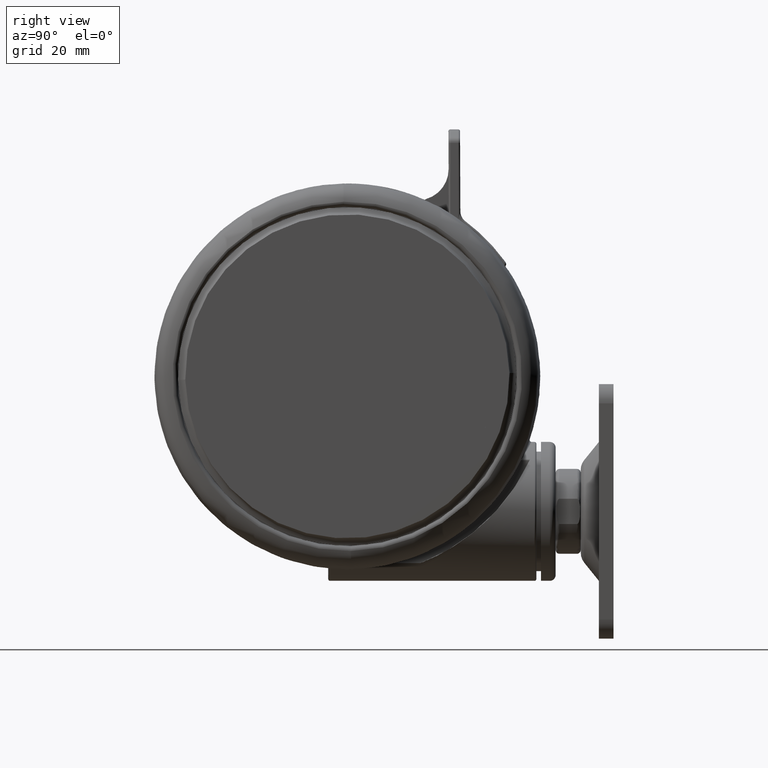
[diagram: clean part render]
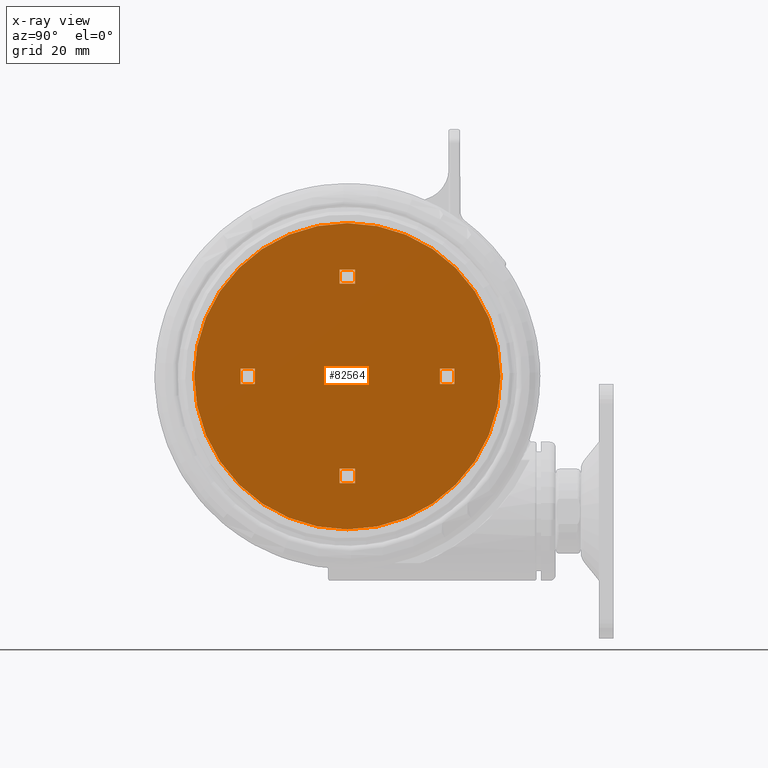
[diagram: x-ray — body ghosted, one internal face saturated and labeled with its STEP entity id]
A machine part, right view, then the same camera in x-ray: the body is ghosted and one INTERNAL B-rep face — a face not visible from any outside direction — is saturated and labeled: STEP entity #82564.
In plain terms, the highlighted planar face has unit normal (-1, 0, 0).
Its self-contained STEP definition (entity closure, byte-faithful):
#300 = LINE ( 'NONE', #68779, #68452 ) ;
#481 = DIRECTION ( 'NONE',  ( -0.02026128721468459900, -0.9997947190500677800, 0.0000000000000000000 ) ) ;
#2002 = ORIENTED_EDGE ( 'NONE', *, *, #5203, .T. ) ;
#2339 = VECTOR ( 'NONE', #33903, 1000.000000000000100 ) ;
#2500 = EDGE_CURVE ( 'NONE', #7332, #41088, #300, .T. ) ;
#2860 = VERTEX_POINT ( 'NONE', #9006 ) ;
#4864 = DIRECTION ( 'NONE',  ( -0.9997947190500675600, 0.02026128721469507000, 0.0000000000000000000 ) ) ;
#4888 = VERTEX_POINT ( 'NONE', #31027 ) ;
#4895 = CARTESIAN_POINT ( 'NONE',  ( 1.999589487155510400, -0.04051773265388143600, -63.39999999999985600 ) ) ;
#4985 = DIRECTION ( 'NONE',  ( 0.02026128721469507000, 0.9997947190500675600, 1.807003620809174600E-016 ) ) ;
#5203 = EDGE_CURVE ( 'NONE', #69400, #23904, #60510, .T. ) ;
#5351 = CARTESIAN_POINT ( 'NONE',  ( -1.513318495892246100, 24.03560067340649200, -63.39999999999985600 ) ) ;
#6065 = VECTOR ( 'NONE', #79771, 1000.000000000000100 ) ;
#6126 = CARTESIAN_POINT ( 'NONE',  ( 0.04052262348474322500, 1.999594279875630300, -63.39999999999985600 ) ) ;
#6220 = CARTESIAN_POINT ( 'NONE',  ( -0.04052252537399518600, -1.999584596324641500, -63.39999999999985600 ) ) ;
#6856 = EDGE_LOOP ( 'NONE', ( #45525, #43356, #79655, #52125 ) ) ;
#6990 = VERTEX_POINT ( 'NONE', #63406 ) ;
#7332 = VERTEX_POINT ( 'NONE', #32328 ) ;
#7757 = VECTOR ( 'NONE', #82706, 1000.000000000000100 ) ;
#7946 = DIRECTION ( 'NONE',  ( 0.02026128721468460300, 0.9997947190500677800, 0.0000000000000000000 ) ) ;
#9006 = CARTESIAN_POINT ( 'NONE',  ( -0.8043730533676043400, -39.69184550451220200, -63.39999999999984200 ) ) ;
#9448 = VERTEX_POINT ( 'NONE', #69516 ) ;
#9541 = CARTESIAN_POINT ( 'NONE',  ( 24.03559588068637600, 1.513323386723199900, -63.39999999999985600 ) ) ;
#10995 = DIRECTION ( 'NONE',  ( 0.9997947190500676700, -0.02026128721468809000, 0.0000000000000000000 ) ) ;
#11409 = CARTESIAN_POINT ( 'NONE',  ( 1.999589487155510000, -0.04051773265389605600, -63.39999999999985600 ) ) ;
#11562 = VECTOR ( 'NONE', #10995, 1000.000000000000100 ) ;
#12308 = EDGE_LOOP ( 'NONE', ( #2002, #22924, #46045, #53781 ) ) ;
#12671 = CARTESIAN_POINT ( 'NONE',  ( -0.04052252537399453300, -1.999584596324641500, -63.39999999999985600 ) ) ;
#13473 = CARTESIAN_POINT ( 'NONE',  ( 2.485860380308025700, 23.95455552454775400, -63.39999999999985600 ) ) ;
#13950 = FACE_BOUND ( 'NONE', #36600, .T. ) ;
#14810 = EDGE_CURVE ( 'NONE', #9448, #49844, #76901, .T. ) ;
#15063 = EDGE_CURVE ( 'NONE', #2860, #23435, #22726, .T. ) ;
#15391 = CIRCLE ( 'NONE', #82207, 39.70000000000000300 ) ;
#15433 = EDGE_CURVE ( 'NONE', #7332, #6990, #79787, .T. ) ;
#16884 = CARTESIAN_POINT ( 'NONE',  ( -40.49168607247237600, 0.8205869739702208500, -63.39999999999985600 ) ) ;
#17122 = CARTESIAN_POINT ( 'NONE',  ( 0.04052262348474387800, 1.999594279875630300, -63.39999999999985600 ) ) ;
#17733 = VECTOR ( 'NONE', #4985, 1000.000000000000100 ) ;
#18486 = EDGE_LOOP ( 'NONE', ( #28557, #60156, #72655, #25910 ) ) ;
#19357 = DIRECTION ( 'NONE',  ( 0.9997947190500677800, -0.02026128721468460300, 1.807003620809174600E-016 ) ) ;
#19376 = LINE ( 'NONE', #59403, #2339 ) ;
#21335 = EDGE_CURVE ( 'NONE', #23904, #62828, #49739, .T. ) ;
#21533 = CARTESIAN_POINT ( 'NONE',  ( 4.905537434596318700E-008, 4.841775494424105400E-006, -63.39999999999985600 ) ) ;
#22116 = EDGE_CURVE ( 'NONE', #63630, #22739, #61683, .T. ) ;
#22171 = EDGE_CURVE ( 'NONE', #4888, #75760, #40594, .T. ) ;
#22726 = CIRCLE ( 'NONE', #51414, 39.70000000000000300 ) ;
#22739 = VERTEX_POINT ( 'NONE', #9541 ) ;
#22924 = ORIENTED_EDGE ( 'NONE', *, *, #21335, .T. ) ;
#23435 = VERTEX_POINT ( 'NONE', #24014 ) ;
#23904 = VERTEX_POINT ( 'NONE', #80232 ) ;
#24014 = CARTESIAN_POINT ( 'NONE',  ( 0.8043731514783482000, 39.69185518806318700, -63.39999999999984200 ) ) ;
#25910 = ORIENTED_EDGE ( 'NONE', *, *, #2500, .F. ) ;
#27956 = DIRECTION ( 'NONE',  ( -0.02026128721468459900, -0.9997947190500677800, 0.0000000000000000000 ) ) ;
#28548 = CARTESIAN_POINT ( 'NONE',  ( -2.485860282197441600, -23.95454584099676200, -63.39999999999985600 ) ) ;
#28557 = ORIENTED_EDGE ( 'NONE', *, *, #15433, .T. ) ;
#29389 = DIRECTION ( 'NONE',  ( -0.02026128721468460300, -0.9997947190500677800, -0.0000000000000000000 ) ) ;
#29781 = DIRECTION ( 'NONE',  ( -0.0000000000000000000, 0.0000000000000000000, -1.000000000000000000 ) ) ;
#29818 = VECTOR ( 'NONE', #29389, 1000.000000000000100 ) ;
#31027 = CARTESIAN_POINT ( 'NONE',  ( -27.73483624306087600, -1.438346940477877900, -63.39999999999985600 ) ) ;
#31549 = ORIENTED_EDGE ( 'NONE', *, *, #22171, .T. ) ;
#32079 = CARTESIAN_POINT ( 'NONE',  ( -24.03559578257562600, -1.513313703172211000, -63.39999999999985600 ) ) ;
#32328 = CARTESIAN_POINT ( 'NONE',  ( -1.438351733197903000, 27.73484113389174200, -63.39999999999985600 ) ) ;
#33196 = CARTESIAN_POINT ( 'NONE',  ( -1.999589389044761100, 0.04052741620488425200, -63.39999999999985600 ) ) ;
#33903 = DIRECTION ( 'NONE',  ( -0.02026128721468460300, -0.9997947190500677800, 0.0000000000000000000 ) ) ;
#34182 = VERTEX_POINT ( 'NONE', #63747 ) ;
#35445 = ORIENTED_EDGE ( 'NONE', *, *, #51388, .T. ) ;
#36600 = EDGE_LOOP ( 'NONE', ( #31549, #56008, #46887, #82997 ) ) ;
#36848 = CARTESIAN_POINT ( 'NONE',  ( -41.05292372831912900, -26.87372674371625800, -63.39999999999985600 ) ) ;
#37275 = AXIS2_PLACEMENT_3D ( 'NONE', #16884, #29781, #74578 ) ;
#38195 = LINE ( 'NONE', #66911, #6065 ) ;
#38828 = DIRECTION ( 'NONE',  ( 0.0000000000000000000, -0.0000000000000000000, 1.000000000000000000 ) ) ;
#39259 = VERTEX_POINT ( 'NONE', #13473 ) ;
#39452 = VERTEX_POINT ( 'NONE', #79306 ) ;
#39643 = DIRECTION ( 'NONE',  ( 0.02026128721469507000, 0.9997947190500675600, 1.807003620809174600E-016 ) ) ;
#40275 = VECTOR ( 'NONE', #44895, 1000.000000000000100 ) ;
#40594 = LINE ( 'NONE', #46351, #74683 ) ;
#41088 = VERTEX_POINT ( 'NONE', #5351 ) ;
#41420 = VECTOR ( 'NONE', #4864, 1000.000000000000100 ) ;
#42595 = CARTESIAN_POINT ( 'NONE',  ( -27.65379109420213800, 2.560831935722394100, -63.39999999999985600 ) ) ;
#43356 = ORIENTED_EDGE ( 'NONE', *, *, #67010, .T. ) ;
#43829 = DIRECTION ( 'NONE',  ( -0.9997947190500676700, 0.02026128721468809000, -0.0000000000000000000 ) ) ;
#44589 = VECTOR ( 'NONE', #74828, 1000.000000000000100 ) ;
#44895 = DIRECTION ( 'NONE',  ( -0.9997947190500677800, 0.02026128721468460300, 1.807003620809174600E-016 ) ) ;
#44967 = EDGE_CURVE ( 'NONE', #63630, #39452, #19376, .T. ) ;
#45525 = ORIENTED_EDGE ( 'NONE', *, *, #44967, .T. ) ;
#46034 = LINE ( 'NONE', #82180, #78131 ) ;
#46038 = FACE_OUTER_BOUND ( 'NONE', #47749, .T. ) ;
#46045 = ORIENTED_EDGE ( 'NONE', *, *, #60876, .T. ) ;
#46351 = CARTESIAN_POINT ( 'NONE',  ( -27.69431366863150500, 0.5612424976222579700, -63.39999999999985600 ) ) ;
#46887 = ORIENTED_EDGE ( 'NONE', *, *, #14810, .T. ) ;
#47708 = VECTOR ( 'NONE', #49741, 1000.000000000000100 ) ;
#47749 = EDGE_LOOP ( 'NONE', ( #62723, #35445 ) ) ;
#48041 = FACE_BOUND ( 'NONE', #18486, .T. ) ;
#49739 = LINE ( 'NONE', #33196, #81786 ) ;
#49741 = DIRECTION ( 'NONE',  ( -0.02026128721468809000, -0.9997947190500676700, 1.807003620809174600E-016 ) ) ;
#49844 = VERTEX_POINT ( 'NONE', #32079 ) ;
#49979 = EDGE_CURVE ( 'NONE', #6990, #39259, #64766, .T. ) ;
#50056 = FACE_BOUND ( 'NONE', #12308, .T. ) ;
#51388 = EDGE_CURVE ( 'NONE', #23435, #2860, #15391, .T. ) ;
#51414 = AXIS2_PLACEMENT_3D ( 'NONE', #77207, #38828, #481 ) ;
#52085 = VERTEX_POINT ( 'NONE', #67909 ) ;
#52125 = ORIENTED_EDGE ( 'NONE', *, *, #22116, .F. ) ;
#52280 = VECTOR ( 'NONE', #61944, 1000.000000000000100 ) ;
#53781 = ORIENTED_EDGE ( 'NONE', *, *, #57038, .F. ) ;
#53785 = LINE ( 'NONE', #11409, #17733 ) ;
#54053 = EDGE_CURVE ( 'NONE', #39259, #41088, #46034, .T. ) ;
#54839 = CARTESIAN_POINT ( 'NONE',  ( -24.03559578257562600, -1.513313703172211000, -63.39999999999985600 ) ) ;
#55466 = CARTESIAN_POINT ( 'NONE',  ( 1.513318594002830000, -24.03559098985550000, -63.39999999999985600 ) ) ;
#56008 = ORIENTED_EDGE ( 'NONE', *, *, #57854, .T. ) ;
#56919 = LINE ( 'NONE', #6220, #7757 ) ;
#57038 = EDGE_CURVE ( 'NONE', #69400, #34182, #53785, .T. ) ;
#57310 = LINE ( 'NONE', #12671, #40275 ) ;
#57854 = EDGE_CURVE ( 'NONE', #75760, #9448, #69733, .T. ) ;
#59403 = CARTESIAN_POINT ( 'NONE',  ( 27.69431376674225500, -0.5612328140712691300, -63.39999999999985600 ) ) ;
#60156 = ORIENTED_EDGE ( 'NONE', *, *, #49979, .T. ) ;
#60510 = LINE ( 'NONE', #36848, #41420 ) ;
#60876 = EDGE_CURVE ( 'NONE', #62828, #34182, #69347, .T. ) ;
#61683 = LINE ( 'NONE', #17122, #44589 ) ;
#61944 = DIRECTION ( 'NONE',  ( 0.9997947190500675600, -0.02026128721469507000, -0.0000000000000000000 ) ) ;
#62723 = ORIENTED_EDGE ( 'NONE', *, *, #15063, .T. ) ;
#62828 = VERTEX_POINT ( 'NONE', #28548 ) ;
#63081 = FACE_BOUND ( 'NONE', #6856, .T. ) ;
#63406 = CARTESIAN_POINT ( 'NONE',  ( 2.560827143002368800, 27.65379598503300300, -63.39999999999985600 ) ) ;
#63630 = VERTEX_POINT ( 'NONE', #82961 ) ;
#63747 = CARTESIAN_POINT ( 'NONE',  ( 1.513318594002830000, -24.03559098985550000, -63.39999999999985600 ) ) ;
#64766 = LINE ( 'NONE', #4895, #47708 ) ;
#66350 = DIRECTION ( 'NONE',  ( 0.0000000000000000000, -0.0000000000000000000, 1.000000000000000000 ) ) ;
#66911 = CARTESIAN_POINT ( 'NONE',  ( 24.03559588068637600, 1.513323386723199900, -63.39999999999985600 ) ) ;
#67010 = EDGE_CURVE ( 'NONE', #39452, #52085, #57310, .T. ) ;
#67736 = VECTOR ( 'NONE', #19357, 1000.000000000000100 ) ;
#67909 = CARTESIAN_POINT ( 'NONE',  ( 23.95455073182763400, -2.485855489477072100, -63.39999999999985600 ) ) ;
#68146 = PLANE ( 'NONE',  #37275 ) ;
#68285 = EDGE_CURVE ( 'NONE', #52085, #22739, #38195, .T. ) ;
#68452 = VECTOR ( 'NONE', #81615, 1000.000000000000100 ) ;
#68779 = CARTESIAN_POINT ( 'NONE',  ( -1.999589389044761600, 0.04052741620487093600, -63.39999999999985600 ) ) ;
#69347 = LINE ( 'NONE', #55466, #52280 ) ;
#69400 = VERTEX_POINT ( 'NONE', #74834 ) ;
#69516 = CARTESIAN_POINT ( 'NONE',  ( -23.95455063371688500, 2.485865173028060800, -63.39999999999985600 ) ) ;
#69733 = LINE ( 'NONE', #6126, #67736 ) ;
#72655 = ORIENTED_EDGE ( 'NONE', *, *, #54053, .T. ) ;
#74578 = DIRECTION ( 'NONE',  ( -0.02026128721468460300, -0.9997947190500677800, 0.0000000000000000000 ) ) ;
#74683 = VECTOR ( 'NONE', #7946, 1000.000000000000100 ) ;
#74828 = DIRECTION ( 'NONE',  ( -0.9997947190500677800, 0.02026128721468460300, 1.807003620809174600E-016 ) ) ;
#74834 = CARTESIAN_POINT ( 'NONE',  ( 1.438351831308456700, -27.73483145034074900, -63.39999999999985600 ) ) ;
#75760 = VERTEX_POINT ( 'NONE', #42595 ) ;
#76901 = LINE ( 'NONE', #54839, #29818 ) ;
#77207 = CARTESIAN_POINT ( 'NONE',  ( 4.905537434596318700E-008, 4.841775494424105400E-006, -63.39999999999985600 ) ) ;
#78131 = VECTOR ( 'NONE', #43829, 1000.000000000000100 ) ;
#79306 = CARTESIAN_POINT ( 'NONE',  ( 27.65379119231288400, -2.560822252171405000, -63.39999999999985600 ) ) ;
#79655 = ORIENTED_EDGE ( 'NONE', *, *, #68285, .T. ) ;
#79771 = DIRECTION ( 'NONE',  ( 0.02026128721468460300, 0.9997947190500677800, -0.0000000000000000000 ) ) ;
#79787 = LINE ( 'NONE', #81311, #11562 ) ;
#80232 = CARTESIAN_POINT ( 'NONE',  ( -2.560827044891814900, -27.65378630148200800, -63.39999999999985600 ) ) ;
#80647 = EDGE_CURVE ( 'NONE', #4888, #49844, #56919, .T. ) ;
#81311 = CARTESIAN_POINT ( 'NONE',  ( -39.93044841662561600, 28.51490069165710400, -63.39999999999985600 ) ) ;
#81615 = DIRECTION ( 'NONE',  ( -0.02026128721468809000, -0.9997947190500676700, 1.807003620809174600E-016 ) ) ;
#81786 = VECTOR ( 'NONE', #39643, 1000.000000000000100 ) ;
#82180 = CARTESIAN_POINT ( 'NONE',  ( -1.513318495892246100, 24.03560067340649200, -63.39999999999985600 ) ) ;
#82207 = AXIS2_PLACEMENT_3D ( 'NONE', #21533, #66350, #27956 ) ;
#82564 = ADVANCED_FACE ( 'NONE', ( #50056, #63081, #48041, #13950, #46038 ), #68146, .F. ) ;
#82706 = DIRECTION ( 'NONE',  ( 0.9997947190500677800, -0.02026128721468460300, 1.807003620809174600E-016 ) ) ;
#82961 = CARTESIAN_POINT ( 'NONE',  ( 27.73483634117162600, 1.438356624028866800, -63.39999999999985600 ) ) ;
#82997 = ORIENTED_EDGE ( 'NONE', *, *, #80647, .F. ) ;